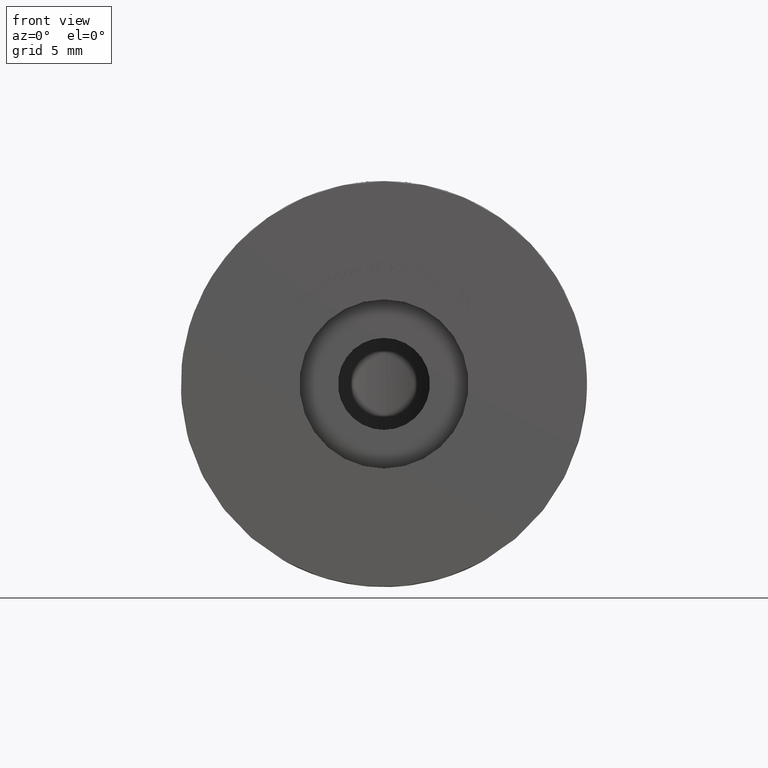
[diagram: clean part render]
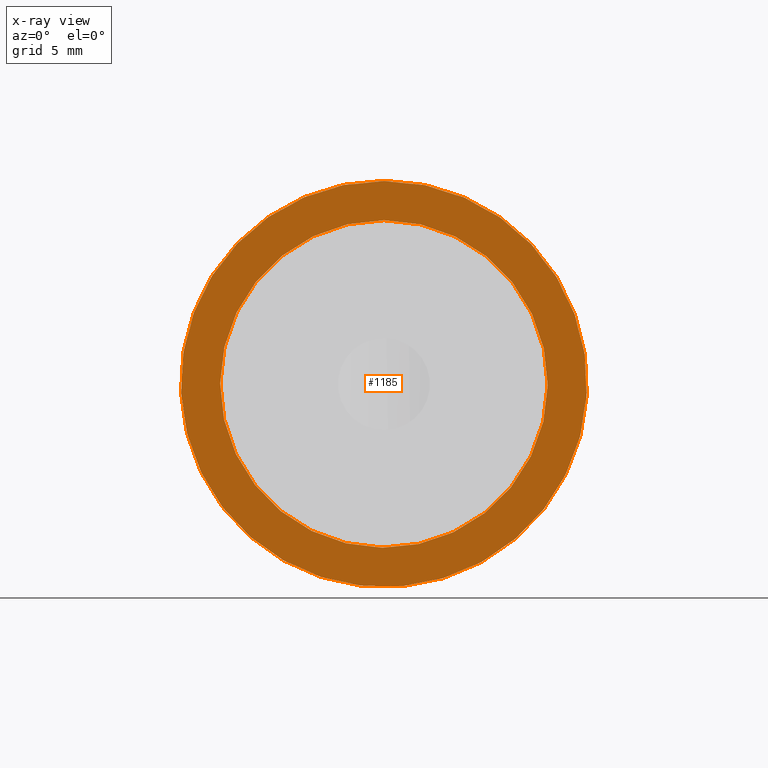
[diagram: x-ray — body ghosted, one internal face saturated and labeled with its STEP entity id]
A machine part, front view, then the same camera in x-ray: the body is ghosted and one INTERNAL B-rep face — a face not visible from any outside direction — is saturated and labeled: STEP entity #1185.
In plain terms, the highlighted planar face has unit normal (0, -1, 0).
Its self-contained STEP definition (entity closure, byte-faithful):
#388 = CIRCLE ( 'NONE', #2586, 15.00000000000000000 ) ;
#1138 = FACE_BOUND ( 'NONE', #11616, .T. ) ;
#1185 = ADVANCED_FACE ( 'NONE', ( #9230, #1138 ), #15150, .T. ) ;
#1885 = CARTESIAN_POINT ( 'NONE',  ( 0.0000000000000000000, 17.00000000000000000, 0.0000000000000000000 ) ) ;
#2140 = CARTESIAN_POINT ( 'NONE',  ( 0.0000000000000000000, 17.00000000000000000, 12.10000000000000000 ) ) ;
#2235 = ORIENTED_EDGE ( 'NONE', *, *, #2826, .T. ) ;
#2586 = AXIS2_PLACEMENT_3D ( 'NONE', #14877, #8366, #4427 ) ;
#2801 = EDGE_CURVE ( 'NONE', #17240, #17240, #14930, .T. ) ;
#2826 = EDGE_CURVE ( 'NONE', #11580, #11580, #388, .T. ) ;
#3519 = CARTESIAN_POINT ( 'NONE',  ( 0.0000000000000000000, 17.00000000000000000, 15.00000000000000000 ) ) ;
#4427 = DIRECTION ( 'NONE',  ( 0.0000000000000000000, 0.0000000000000000000, 1.000000000000000000 ) ) ;
#4795 = EDGE_LOOP ( 'NONE', ( #2235 ) ) ;
#6567 = AXIS2_PLACEMENT_3D ( 'NONE', #8632, #12585, #9867 ) ;
#8366 = DIRECTION ( 'NONE',  ( 0.0000000000000000000, 1.000000000000000000, 0.0000000000000000000 ) ) ;
#8559 = AXIS2_PLACEMENT_3D ( 'NONE', #1885, #14937, #12199 ) ;
#8632 = CARTESIAN_POINT ( 'NONE',  ( 0.0000000000000000000, 17.00000000000000000, 0.0000000000000000000 ) ) ;
#9230 = FACE_OUTER_BOUND ( 'NONE', #4795, .T. ) ;
#9867 = DIRECTION ( 'NONE',  ( 0.0000000000000000000, -0.0000000000000000000, 1.000000000000000000 ) ) ;
#11580 = VERTEX_POINT ( 'NONE', #3519 ) ;
#11616 = EDGE_LOOP ( 'NONE', ( #13921 ) ) ;
#12199 = DIRECTION ( 'NONE',  ( 0.0000000000000000000, 0.0000000000000000000, 1.000000000000000000 ) ) ;
#12585 = DIRECTION ( 'NONE',  ( 0.0000000000000000000, 1.000000000000000000, 0.0000000000000000000 ) ) ;
#13921 = ORIENTED_EDGE ( 'NONE', *, *, #2801, .F. ) ;
#14877 = CARTESIAN_POINT ( 'NONE',  ( 0.0000000000000000000, 17.00000000000000000, 0.0000000000000000000 ) ) ;
#14930 = CIRCLE ( 'NONE', #8559, 12.10000000000000000 ) ;
#14937 = DIRECTION ( 'NONE',  ( 0.0000000000000000000, 1.000000000000000000, 0.0000000000000000000 ) ) ;
#15150 = PLANE ( 'NONE',  #6567 ) ;
#17240 = VERTEX_POINT ( 'NONE', #2140 ) ;